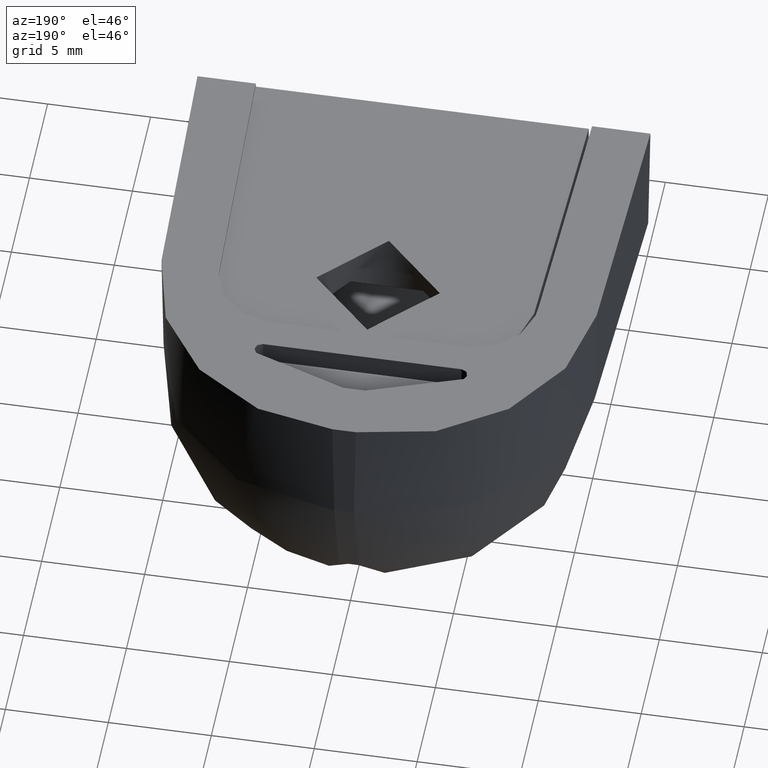
[diagram: clean part render]
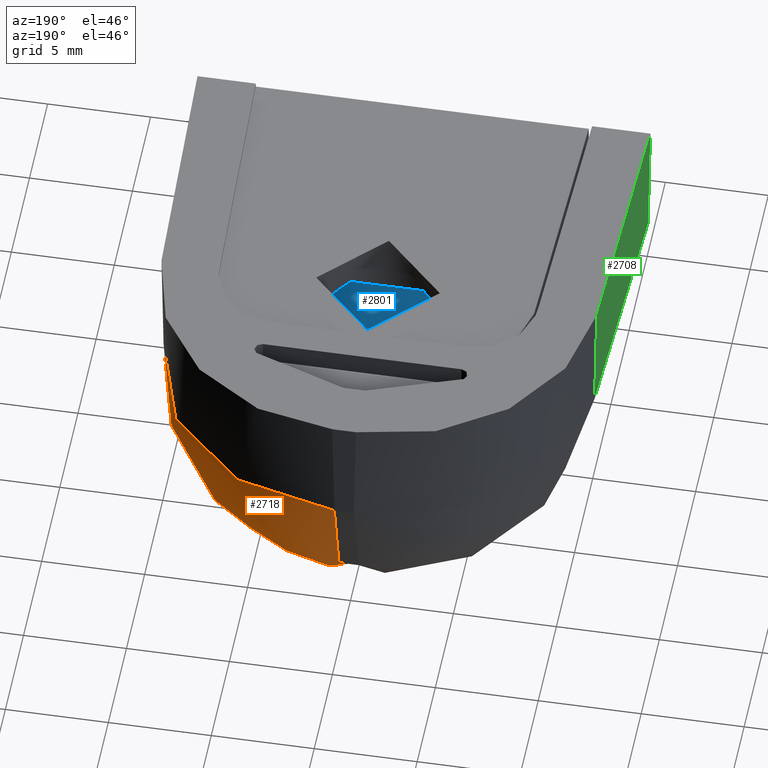
[diagram: same view with three faces highlighted in distinct colors, each labeled with its STEP entity id]
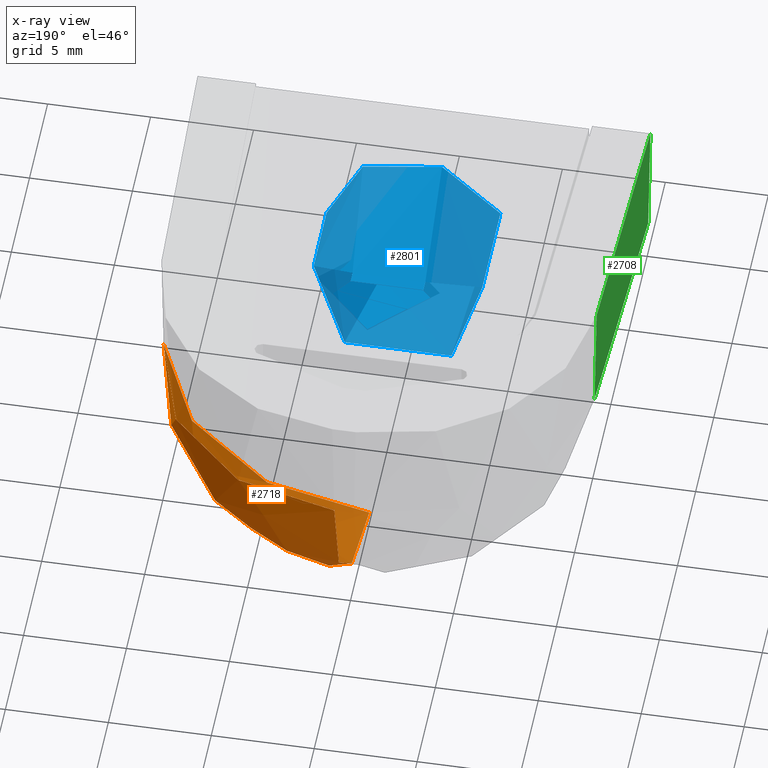
[diagram: x-ray of the same camera — body ghosted, the three highlighted faces saturated]
A machine part, auxiliary view with three faces highlighted in distinct colors.
The next image is the same camera in x-ray (body ghosted, the three faces saturated) — at least one of them is partly hidden behind the body in this view.
Their STEP definitions:

[orange] entity #2718 — the highlighted spherical surface has radius 10 mm.
#30=SPHERICAL_SURFACE('',#2914,10.);
#163=CIRCLE('',#2903,10.);
#164=CIRCLE('',#2906,10.);
#167=CIRCLE('',#2913,10.);
#361=FACE_OUTER_BOUND('',#528,.T.);
#528=EDGE_LOOP('',(#1973,#1974,#1975));
#1180=VERTEX_POINT('',#4244);
#1181=VERTEX_POINT('',#4248);
#1182=VERTEX_POINT('',#4254);
#1469=EDGE_CURVE('',#1180,#1181,#163,.T.);
#1472=EDGE_CURVE('',#1182,#1181,#164,.T.);
#1478=EDGE_CURVE('',#1180,#1182,#167,.T.);
#1973=ORIENTED_EDGE('',*,*,#1472,.T.);
#1974=ORIENTED_EDGE('',*,*,#1469,.F.);
#1975=ORIENTED_EDGE('',*,*,#1478,.T.);
#2718=ADVANCED_FACE('',(#361),#30,.T.);
#2903=AXIS2_PLACEMENT_3D('',#4249,#3289,#3290);
#2906=AXIS2_PLACEMENT_3D('',#4255,#3297,#3298);
#2913=AXIS2_PLACEMENT_3D('',#4266,#3314,#3315);
#2914=AXIS2_PLACEMENT_3D('',#4267,#3316,#3317);
#3289=DIRECTION('center_axis',(0.0342754885582405,-0.998803607773814,-0.0348789905546005));
#3290=DIRECTION('ref_axis',(-2.14455189717633E-16,0.0348994967025061,-0.999390827019096));
#3297=DIRECTION('center_axis',(-0.0174524064372798,0.,-0.999847695156391));
#3298=DIRECTION('ref_axis',(0.,1.,0.));
#3314=DIRECTION('center_axis',(1.,0.,0.));
#3315=DIRECTION('ref_axis',(0.,0.0348994967024999,-0.999390827019096));
#3316=DIRECTION('center_axis',(-0.719230241402633,0.694658370459232,0.0125542105620406));
#3317=DIRECTION('ref_axis',(0.694552570624757,0.719339800338425,-0.0121234602163392));
#4244=CARTESIAN_POINT('',(0.4759578195844,12.34899496703,-15.5687635933));
#4248=CARTESIAN_POINT('',(10.46834396914,12.34899496702,-5.749273072139));
#4249=CARTESIAN_POINT('Origin',(0.4759578195844,12.,-5.574855323111));
#4254=CARTESIAN_POINT('',(0.4759578195836,22.,-5.574855323111));
#4255=CARTESIAN_POINT('Origin',(0.4759578195844,12.,-5.574855323111));
#4266=CARTESIAN_POINT('Origin',(0.4759578195844,12.,-5.574855323111));
#4267=CARTESIAN_POINT('Origin',(0.4759578195844,12.,-5.574855323111));

[blue] entity #2801 — the highlighted cylindrical surface (bore or boss wall) has radius 4.35 mm, axis along (-0, 1, -0).
#77=FACE_BOUND('',#616,.T.);
#113=B_SPLINE_CURVE_WITH_KNOTS('',3,(#5029,#5030,#5031,#5032,#5033,#5034,
#5035,#5036,#5037,#5038),.UNSPECIFIED.,.F.,.F.,(4,2,2,2,4),(-1.60402006954209,
-1.53536291113311,-1.41798101800889,-1.30059912488467,-1.23194196647568),
 .UNSPECIFIED.);
#115=B_SPLINE_CURVE_WITH_KNOTS('',3,(#5069,#5070,#5071,#5072,#5073,#5074,
#5075,#5076,#5077,#5078,#5079,#5080),.UNSPECIFIED.,.F.,.F.,(4,2,2,2,2,4),
(-0.450689940544966,-0.333389420295565,-0.216088900046164,-0.108044450023082,
-0.054022225011541,0.),.UNSPECIFIED.);
#122=B_SPLINE_CURVE_WITH_KNOTS('',3,(#5584,#5585,#5586,#5587,#5588,#5589,
#5590,#5591,#5592,#5593,#5594,#5595),.UNSPECIFIED.,.F.,.F.,(4,2,2,2,2,4),
(0.,0.054022225011541,0.108044450023082,0.216088900046164,0.333389420295565,
0.450689940544966),.UNSPECIFIED.);
#235=CIRCLE('',#3070,4.35);
#236=CIRCLE('',#3071,4.35);
#311=CYLINDRICAL_SURFACE('',#3069,4.35);
#444=FACE_OUTER_BOUND('',#615,.T.);
#615=EDGE_LOOP('',(#2419,#2420,#2421,#2422,#2423,#2424));
#616=EDGE_LOOP('',(#2425));
#842=LINE('',#5050,#1054);
#844=LINE('',#5055,#1056);
#1054=VECTOR('',#3715,0.575515518713001);
#1056=VECTOR('',#3719,0.575515518713001);
#1314=VERTEX_POINT('',#5013);
#1317=VERTEX_POINT('',#5027);
#1318=VERTEX_POINT('',#5040);
#1324=VERTEX_POINT('',#5053);
#1328=VERTEX_POINT('',#5068);
#1337=VERTEX_POINT('',#5582);
#1338=VERTEX_POINT('',#5596);
#1681=EDGE_CURVE('',#1314,#1317,#113,.T.);
#1687=EDGE_CURVE('',#1318,#1314,#842,.T.);
#1689=EDGE_CURVE('',#1324,#1317,#844,.T.);
#1694=EDGE_CURVE('',#1328,#1318,#115,.T.);
#1711=EDGE_CURVE('',#1337,#1328,#235,.T.);
#1712=EDGE_CURVE('',#1324,#1337,#122,.T.);
#1713=EDGE_CURVE('',#1338,#1338,#236,.T.);
#2419=ORIENTED_EDGE('',*,*,#1711,.T.);
#2420=ORIENTED_EDGE('',*,*,#1694,.T.);
#2421=ORIENTED_EDGE('',*,*,#1687,.T.);
#2422=ORIENTED_EDGE('',*,*,#1681,.T.);
#2423=ORIENTED_EDGE('',*,*,#1689,.F.);
#2424=ORIENTED_EDGE('',*,*,#1712,.T.);
#2425=ORIENTED_EDGE('',*,*,#1713,.F.);
#2801=ADVANCED_FACE('',(#444,#77),#311,.F.);
#3069=AXIS2_PLACEMENT_3D('',#5581,#3750,#3751);
#3070=AXIS2_PLACEMENT_3D('',#5583,#3752,#3753);
#3071=AXIS2_PLACEMENT_3D('',#5597,#3754,#3755);
#3715=DIRECTION('',(0.,1.,0.));
#3719=DIRECTION('',(0.,1.,0.));
#3750=DIRECTION('center_axis',(0.,1.,0.));
#3751=DIRECTION('ref_axis',(-1.,0.,0.));
#3752=DIRECTION('center_axis',(0.,1.,0.));
#3753=DIRECTION('ref_axis',(1.,0.,0.));
#3754=DIRECTION('center_axis',(0.,1.,0.));
#3755=DIRECTION('ref_axis',(1.,0.,0.));
#5013=CARTESIAN_POINT('',(-1.766882848408,9.575515518713,-2.525));
#5027=CARTESIAN_POINT('',(1.766882848408,9.575515518713,-2.525));
#5029=CARTESIAN_POINT('Ctrl Pts',(-1.76688284840807,9.57551551871302,-2.52499999999982));
#5030=CARTESIAN_POINT('Ctrl Pts',(-1.58518568545614,9.4431007297952,-2.44423582369186));
#5031=CARTESIAN_POINT('Ctrl Pts',(-1.38290568813523,9.327515345908,-2.36962472081837));
#5032=CARTESIAN_POINT('Ctrl Pts',(-0.799658402448497,9.08107027439877,-2.20710035834294));
#5033=CARTESIAN_POINT('Ctrl Pts',(-0.391272977080727,9.,-2.15));
#5034=CARTESIAN_POINT('Ctrl Pts',(0.391272977080728,9.,-2.15));
#5035=CARTESIAN_POINT('Ctrl Pts',(0.799658402448498,9.08107027439877,-2.20710035834294));
#5036=CARTESIAN_POINT('Ctrl Pts',(1.38290568813524,9.32751534590801,-2.36962472081838));
#5037=CARTESIAN_POINT('Ctrl Pts',(1.58518568545614,9.4431007297952,-2.44423582369186));
#5038=CARTESIAN_POINT('Ctrl Pts',(1.76688284840806,9.57551551871302,-2.52499999999982));
#5040=CARTESIAN_POINT('',(-1.766882848408,9.,-2.525));
#5050=CARTESIAN_POINT('',(-1.766882848408,9.,-2.525));
#5053=CARTESIAN_POINT('',(1.766882848408,9.,-2.525));
#5055=CARTESIAN_POINT('',(1.766882848408,9.,-2.525));
#5068=CARTESIAN_POINT('',(-4.092294588614,6.5,-5.025));
#5069=CARTESIAN_POINT('Ctrl Pts',(-4.09229458861407,6.5,-5.025));
#5070=CARTESIAN_POINT('Ctrl Pts',(-3.9597135408226,6.5,-4.65716223428488));
#5071=CARTESIAN_POINT('Ctrl Pts',(-3.76884977193087,6.58418730693248,-4.29341173096647));
#5072=CARTESIAN_POINT('Ctrl Pts',(-3.31846682368844,6.87624372743232,-3.66080354577544));
#5073=CARTESIAN_POINT('Ctrl Pts',(-3.05940959168481,7.08318620855522,-3.39118983312774));
#5074=CARTESIAN_POINT('Ctrl Pts',(-2.59131109387922,7.51572892873536,-2.99367660667377));
#5075=CARTESIAN_POINT('Ctrl Pts',(-2.34370431874166,7.76896685215611,-2.82780269436407));
#5076=CARTESIAN_POINT('Ctrl Pts',(-2.03603851259003,8.19245391147989,-2.65410407020422));
#5077=CARTESIAN_POINT('Ctrl Pts',(-1.94480994007865,8.34050742003982,-2.60824215182684));
#5078=CARTESIAN_POINT('Ctrl Pts',(-1.81022552379081,8.65427278469771,-2.54384674616112));
#5079=CARTESIAN_POINT('Ctrl Pts',(-1.76688284840846,8.8199259166282,-2.525));
#5080=CARTESIAN_POINT('Ctrl Pts',(-1.76688284840846,9.,-2.525));
#5581=CARTESIAN_POINT('Origin',(0.,1.5,-6.5));
#5582=CARTESIAN_POINT('',(4.092294588614,6.5,-5.025));
#5583=CARTESIAN_POINT('Origin',(0.,6.5,-6.5));
#5584=CARTESIAN_POINT('Ctrl Pts',(1.76688284840846,9.,-2.525));
#5585=CARTESIAN_POINT('Ctrl Pts',(1.76688284840846,8.8199259166282,-2.525));
#5586=CARTESIAN_POINT('Ctrl Pts',(1.81022552379081,8.65427278469771,-2.54384674616112));
#5587=CARTESIAN_POINT('Ctrl Pts',(1.94480994007865,8.34050742003982,-2.60824215182684));
#5588=CARTESIAN_POINT('Ctrl Pts',(2.03603851259003,8.19245391147989,-2.65410407020422));
#5589=CARTESIAN_POINT('Ctrl Pts',(2.34370431874165,7.76896685215611,-2.82780269436407));
#5590=CARTESIAN_POINT('Ctrl Pts',(2.59131109387922,7.51572892873536,-2.99367660667377));
#5591=CARTESIAN_POINT('Ctrl Pts',(3.05940959168481,7.08318620855522,-3.39118983312773));
#5592=CARTESIAN_POINT('Ctrl Pts',(3.31846682368844,6.87624372743232,-3.66080354577544));
#5593=CARTESIAN_POINT('Ctrl Pts',(3.76884977193087,6.58418730693248,-4.29341173096647));
#5594=CARTESIAN_POINT('Ctrl Pts',(3.9597135408226,6.5,-4.65716223428487));
#5595=CARTESIAN_POINT('Ctrl Pts',(4.09229458861407,6.5,-5.025));
#5596=CARTESIAN_POINT('',(4.35,1.5,-6.5));
#5597=CARTESIAN_POINT('Origin',(0.,1.5,-6.5));

[green] entity #2708 — the highlighted planar face has unit normal (-0.9992, 0.0349, -0.0174).
#351=FACE_OUTER_BOUND('',#518,.T.);
#518=EDGE_LOOP('',(#1934,#1935,#1936,#1937));
#681=LINE('',#3953,#893);
#711=LINE('',#4147,#923);
#717=LINE('',#4237,#929);
#718=LINE('',#4238,#930);
#893=VECTOR('',#3160,6.18145094375622);
#923=VECTOR('',#3236,12.3565245192098);
#929=VECTOR('',#3276,12.3637869055601);
#930=VECTOR('',#3277,5.7501488476599);
#1133=VERTEX_POINT('',#3950);
#1134=VERTEX_POINT('',#3952);
#1175=VERTEX_POINT('',#4145);
#1178=VERTEX_POINT('',#4236);
#1395=EDGE_CURVE('',#1133,#1134,#681,.T.);
#1449=EDGE_CURVE('',#1133,#1175,#711,.T.);
#1463=EDGE_CURVE('',#1134,#1178,#717,.T.);
#1464=EDGE_CURVE('',#1175,#1178,#718,.T.);
#1934=ORIENTED_EDGE('',*,*,#1463,.F.);
#1935=ORIENTED_EDGE('',*,*,#1395,.F.);
#1936=ORIENTED_EDGE('',*,*,#1449,.T.);
#1937=ORIENTED_EDGE('',*,*,#1464,.T.);
#2637=PLANE('',#2898);
#2708=ADVANCED_FACE('',(#351),#2637,.T.);
#2898=AXIS2_PLACEMENT_3D('',#4235,#3274,#3275);
#3160=DIRECTION('',(0.0174524064372798,0.,-0.999847695156391));
#3236=DIRECTION('',(0.0349048063981306,0.999390641586316,0.));
#3274=DIRECTION('center_axis',(-0.999238614955483,0.0348994967024994,-0.0174417749028297));
#3275=DIRECTION('ref_axis',(-0.0174524064372825,1.30212680915509E-16,0.999847695156391));
#3276=DIRECTION('',(0.0342754885582405,0.998803607773814,0.0348789905546005));
#3277=DIRECTION('',(0.0174524064372798,-1.27585458065299E-13,-0.999847695156391));
#3950=CARTESIAN_POINT('',(-11.,0.,0.));
#3952=CARTESIAN_POINT('',(-10.89211880576,0.,-6.180509478837));
#3953=CARTESIAN_POINT('',(-11.,0.,0.));
#4145=CARTESIAN_POINT('',(-10.5686979039,12.34899496703,0.));
#4147=CARTESIAN_POINT('',(-11.,0.,0.));
#4235=CARTESIAN_POINT('Origin',(-10.72071896115,0.,-16.));
#4236=CARTESIAN_POINT('',(-10.46834396914,12.34899496702,-5.749273072139));
#4237=CARTESIAN_POINT('',(-10.89211880576,0.,-6.180509478837));
#4238=CARTESIAN_POINT('',(-10.5686979039,12.34899496703,0.));